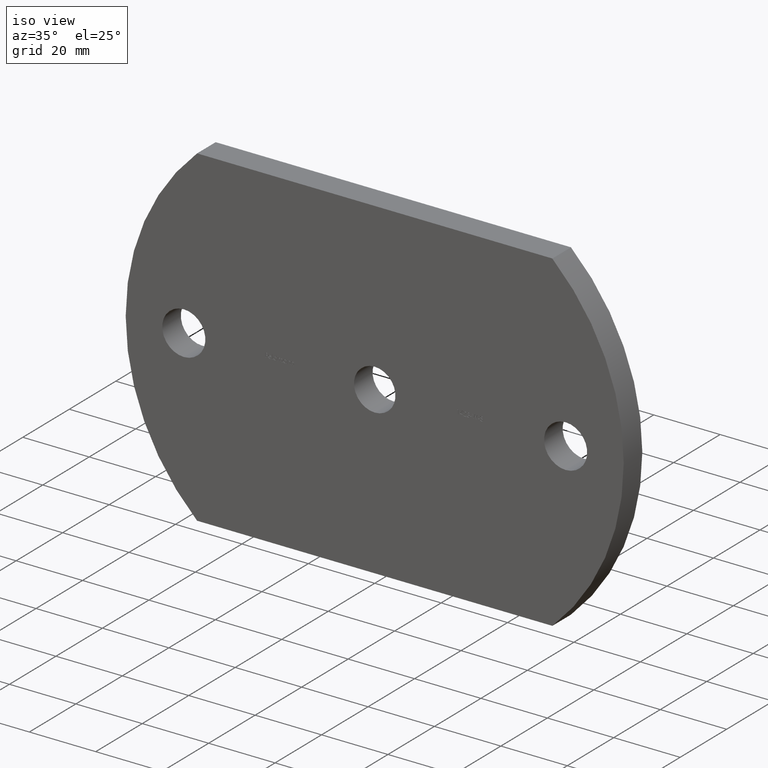
[diagram: clean part render]
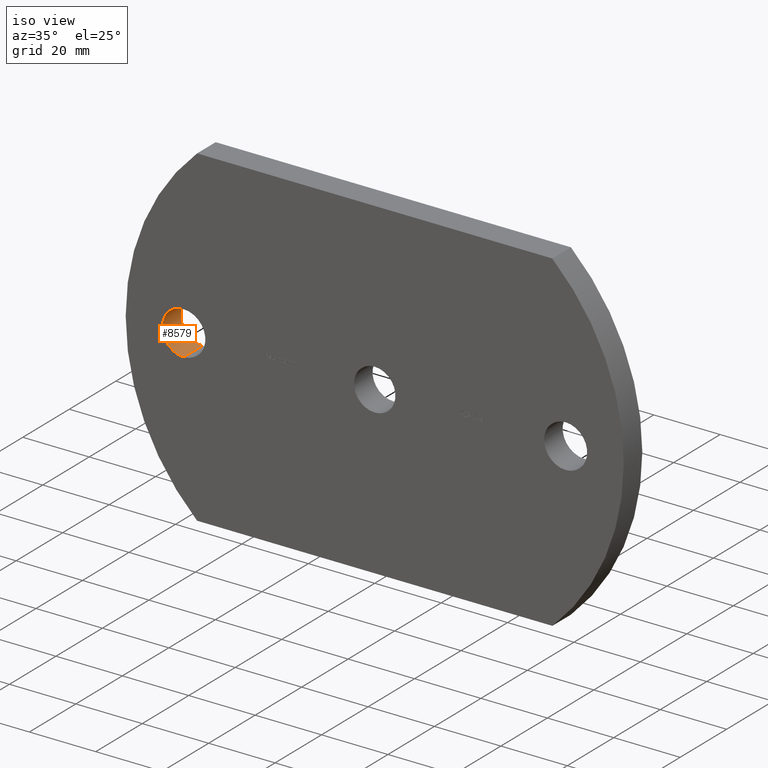
[diagram: same view with one face highlighted and labeled with its STEP entity id]
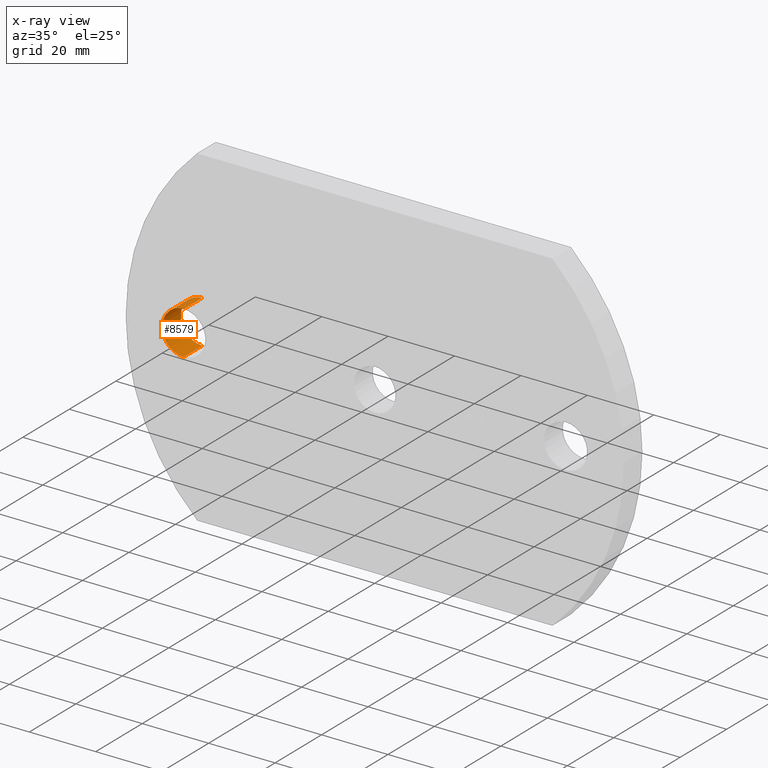
[diagram: x-ray of the same camera — body ghosted, the highlighted face saturated]
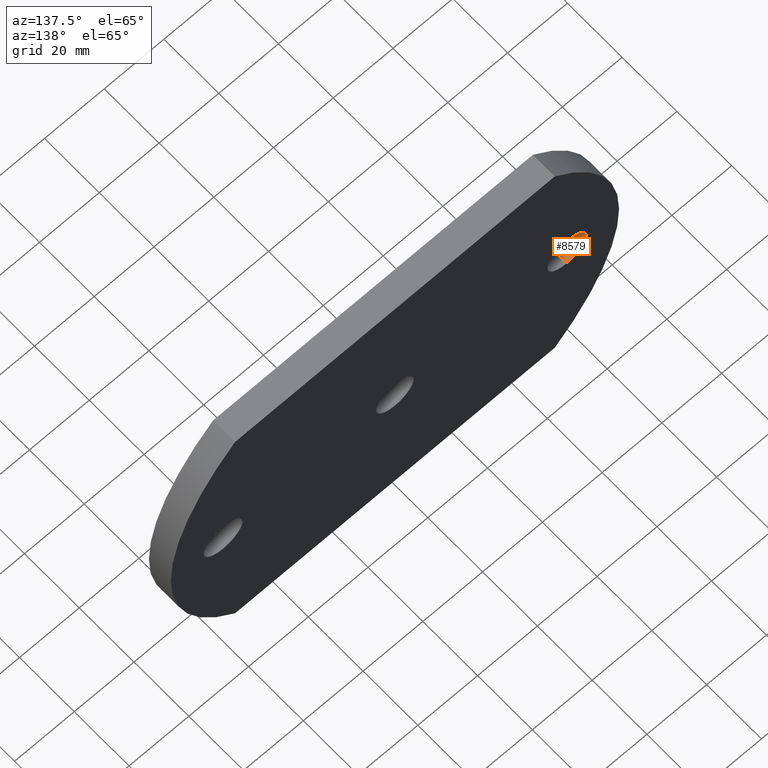
[diagram: same view with one face highlighted and labeled with its STEP entity id]
A machine part, iso view. The second image highlights one B-rep face of the part: STEP entity #8579.
The next image is the same camera in x-ray: the body ghosted, the highlighted face saturated — about 0% of this face is hidden behind the body in this view.
A second angle (auxiliary view) of the same face is appended — the face is thin or edge-on in the first view.
In plain terms, the highlighted cylindrical surface (edge-blend (fillet) strip) has radius 6.5 mm, axis along (-0, 1, -0).
Its self-contained STEP definition (entity closure, byte-faithful):
#343 = AXIS2_PLACEMENT_3D ( 'NONE', #2963, #3736, #5624 ) ;
#387 = CARTESIAN_POINT ( 'NONE',  ( -57.50000000000000000, 0.0000000000000000000, 6.500000000000000900 ) ) ;
#504 = EDGE_CURVE ( 'NONE', #5542, #8262, #7122, .T. ) ;
#525 = CARTESIAN_POINT ( 'NONE',  ( -57.50000000000000000, 8.000000000000000000, 6.500000000000000900 ) ) ;
#1257 = CIRCLE ( 'NONE', #9519, 6.500000000000000900 ) ;
#1386 = ORIENTED_EDGE ( 'NONE', *, *, #6592, .T. ) ;
#2261 = EDGE_LOOP ( 'NONE', ( #9170, #1386, #2754, #6388 ) ) ;
#2513 = DIRECTION ( 'NONE',  ( 0.0000000000000000000, 0.0000000000000000000, 1.000000000000000000 ) ) ;
#2550 = CARTESIAN_POINT ( 'NONE',  ( -57.50000000000000000, 0.0000000000000000000, 0.0000000000000000000 ) ) ;
#2754 = ORIENTED_EDGE ( 'NONE', *, *, #10008, .T. ) ;
#2963 = CARTESIAN_POINT ( 'NONE',  ( -57.50000000000000000, 0.0000000000000000000, 0.0000000000000000000 ) ) ;
#3017 = CYLINDRICAL_SURFACE ( 'NONE', #3895, 6.500000000000000900 ) ;
#3256 = DIRECTION ( 'NONE',  ( 0.0000000000000000000, 1.000000000000000000, 0.0000000000000000000 ) ) ;
#3720 = CARTESIAN_POINT ( 'NONE',  ( -57.50000000000000000, 0.0000000000000000000, -6.500000000000000900 ) ) ;
#3736 = DIRECTION ( 'NONE',  ( 0.0000000000000000000, 1.000000000000000000, 0.0000000000000000000 ) ) ;
#3895 = AXIS2_PLACEMENT_3D ( 'NONE', #2550, #5213, #2513 ) ;
#4532 = CARTESIAN_POINT ( 'NONE',  ( -57.50000000000000000, 0.0000000000000000000, 6.500000000000000900 ) ) ;
#4976 = VECTOR ( 'NONE', #9621, 1000.000000000000000 ) ;
#5035 = CIRCLE ( 'NONE', #343, 6.500000000000000900 ) ;
#5128 = EDGE_CURVE ( 'NONE', #8477, #5542, #5035, .T. ) ;
#5213 = DIRECTION ( 'NONE',  ( -0.0000000000000000000, 1.000000000000000000, -0.0000000000000000000 ) ) ;
#5374 = CARTESIAN_POINT ( 'NONE',  ( -57.50000000000000000, 0.0000000000000000000, -6.500000000000000900 ) ) ;
#5459 = VERTEX_POINT ( 'NONE', #7757 ) ;
#5542 = VERTEX_POINT ( 'NONE', #4532 ) ;
#5624 = DIRECTION ( 'NONE',  ( 0.0000000000000000000, 0.0000000000000000000, 1.000000000000000000 ) ) ;
#6046 = VECTOR ( 'NONE', #10325, 1000.000000000000000 ) ;
#6388 = ORIENTED_EDGE ( 'NONE', *, *, #504, .F. ) ;
#6592 = EDGE_CURVE ( 'NONE', #8477, #5459, #7270, .T. ) ;
#7122 = LINE ( 'NONE', #387, #6046 ) ;
#7270 = LINE ( 'NONE', #5374, #4976 ) ;
#7527 = DIRECTION ( 'NONE',  ( 0.0000000000000000000, 0.0000000000000000000, 1.000000000000000000 ) ) ;
#7615 = FACE_OUTER_BOUND ( 'NONE', #2261, .T. ) ;
#7757 = CARTESIAN_POINT ( 'NONE',  ( -57.50000000000000000, 8.000000000000000000, -6.500000000000000900 ) ) ;
#8262 = VERTEX_POINT ( 'NONE', #525 ) ;
#8443 = CARTESIAN_POINT ( 'NONE',  ( -57.50000000000000000, 8.000000000000000000, 0.0000000000000000000 ) ) ;
#8477 = VERTEX_POINT ( 'NONE', #3720 ) ;
#8579 = ADVANCED_FACE ( 'NONE', ( #7615 ), #3017, .F. ) ;
#9170 = ORIENTED_EDGE ( 'NONE', *, *, #5128, .F. ) ;
#9519 = AXIS2_PLACEMENT_3D ( 'NONE', #8443, #3256, #7527 ) ;
#9621 = DIRECTION ( 'NONE',  ( -0.0000000000000000000, 1.000000000000000000, -0.0000000000000000000 ) ) ;
#10008 = EDGE_CURVE ( 'NONE', #5459, #8262, #1257, .T. ) ;
#10325 = DIRECTION ( 'NONE',  ( -0.0000000000000000000, 1.000000000000000000, -0.0000000000000000000 ) ) ;